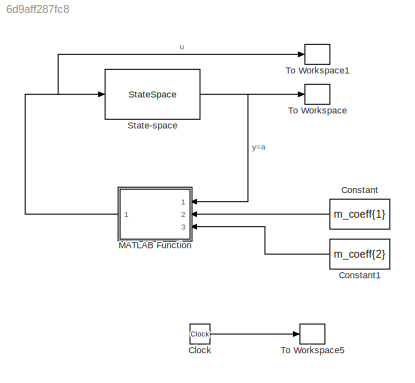
MODEL slx_6d9aff287fc8
KIND model
CONFIG AbsTol = auto
CONFIG EnableMultiTasking = off
CONFIG FixedStep = auto
CONFIG MaxStep = auto
CONFIG MinStep = auto
CONFIG RelTol = 1e-3
CONFIG SampleTimeConstraint = Unconstrained
CONFIG Solver = VariableStepAuto
CONFIG SolverName = VariableStepAuto
CONFIG StartTime = 0.0
CONFIG StopTime = 20.0
BLOCK [Clock] Clock
  Decimation = 20
BLOCK [Constant] Constant
  Value = m_coeff{1}
  VectorParams1D = off
BLOCK [Constant] Constant1
  Value = m_coeff{2}
  VectorParams1D = off
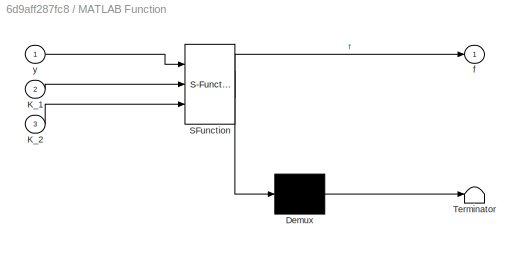
BLOCK [SubSystem] MATLAB Function
  ErrorFcn = Stateflow.Translate.translate
  PermitHierarchicalResolution = ExplicitOnly
  Ports = [3, 1]
  RequestExecContextInheritance = off
  SFBlockType = MATLAB Function
  TreatAsAtomicUnit = on
BLOCK [Demux] MATLAB Function/ Demux 
  Outputs = 1
  Ports = [1, 1]
BLOCK [S-Function] MATLAB Function/ SFunction 
  EnableBusSupport = on
  FunctionName = sf_sfun
  PortCounts = [3 2]
  Ports = [3, 2]
  SFcnIsStateOwnerBlock = off
  SFunctionDeploymentMode = off
  Tag = Stateflow S-Function 2
BLOCK [Terminator] MATLAB Function/ Terminator 
BLOCK [Inport] MATLAB Function/K_1
  IconDisplay = Port number
  Port = 2
BLOCK [Inport] MATLAB Function/K_2
  IconDisplay = Port number
  Port = 3
BLOCK [Outport] MATLAB Function/f
  IconDisplay = Port number
BLOCK [Inport] MATLAB Function/y
  IconDisplay = Port number
BLOCK [StateSpace] State-space
  A = LQR_sys.A
  B = LQR_sys.B
  C = LQR_sys.C
  D = LQR_sys.D
  InitialCondition = [1 0]
  Ports = [1, 1]
BLOCK [ToWorkspace] To Workspace
  FixptAsFi = on
  MaxDataPoints = inf
  Ports = [1]
  SampleTime = -1
  SaveFormat = Timeseries
  VariableName = a
BLOCK [ToWorkspace] To Workspace1
  FixptAsFi = on
  MaxDataPoints = inf
  Ports = [1]
  SampleTime = -1
  SaveFormat = Timeseries
  VariableName = b
BLOCK [ToWorkspace] To Workspace5
  FixptAsFi = on
  MaxDataPoints = inf
  Ports = [1]
  SampleTime = -1
  SaveFormat = Timeseries
  VariableName = t
LINE Clock:1 -> To Workspace5:1
LINE Constant1:1 -> MATLAB Function:3
LINE Constant:1 -> MATLAB Function:2
NET MATLAB Function:1 -> State-space:1, To Workspace1:1
NET State-space:1 -> MATLAB Function:1, To Workspace:1
note: NET lines group one-source signal fan-out (src -> all destinations, sorted); 1:1 wires keep LINE
CHART MATLAB Function states=1 transitions=1
  STATE_LABEL 'eML_blk_kernel()'
  STATE_LABEL 'SCRIPT:\nfunction f = fcn(y,K_1,K_2)\n    f=0;\n    for i=1:length(K_1)\n        f=f+K_1(i)*y(1)^(i-1);\n    end\n    for i=1:length(K_2)\n        f=f+K_2(i)*y(2)^(i-1);\n    end\nend\n\n'
